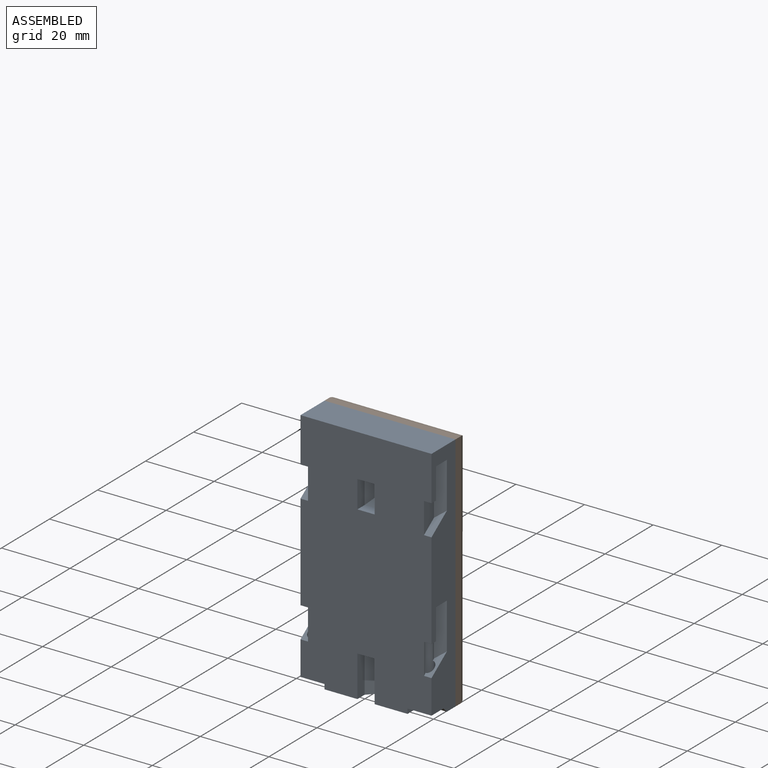
[diagram: assembled view]
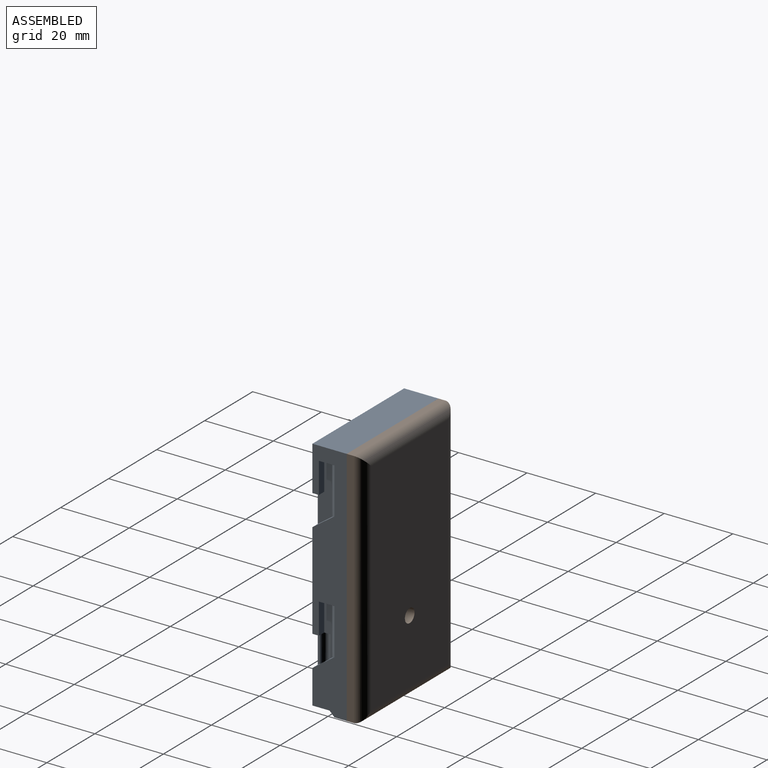
[diagram: assembled view, second angle]
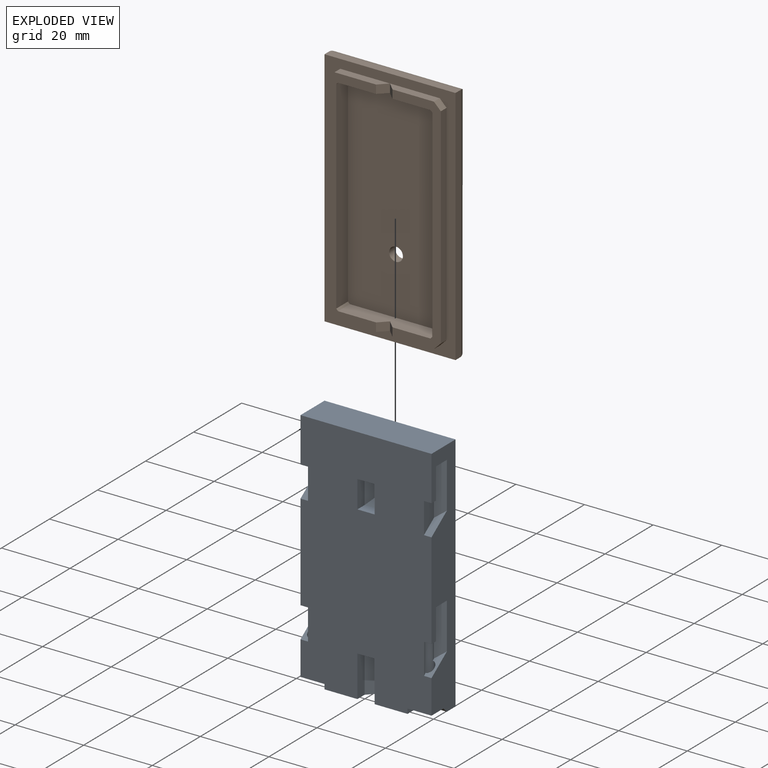
[diagram: exploded view]
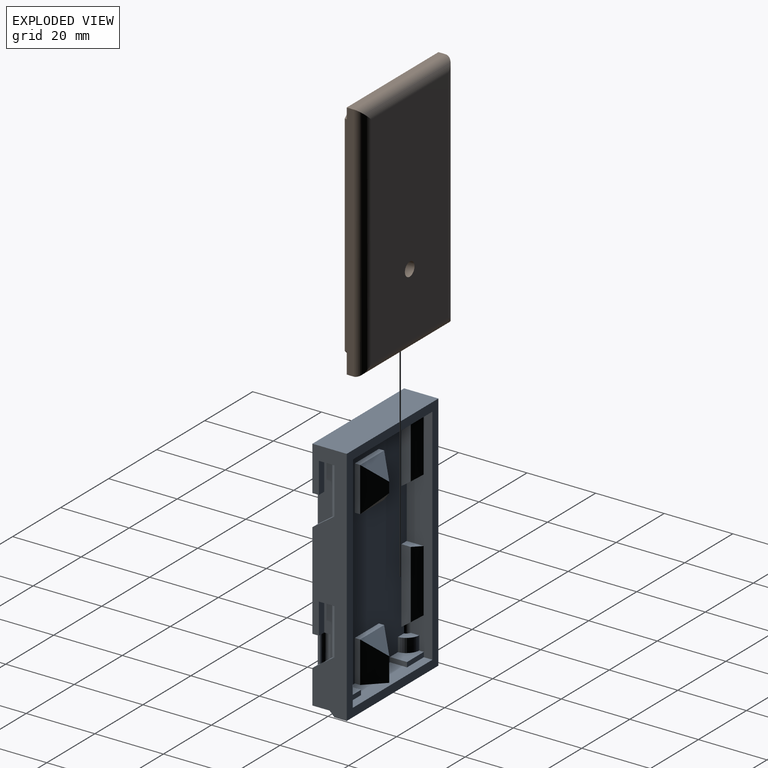
[diagram: exploded view, second angle]
ASSEMBLY  parts=2 mates=3
PART A: 97 faces, bbox 38.2x10x70.4 mm
  f0: plane 65.4x33.2mm, normal (0,1,0), area 1680.3mm2, adj f1,f2,f53,f54,f55,f56,f57,f58
  f1: plane 65.4x7.5mm, normal (1,0,0), area 273.3mm2, adj f0,f2,f5,f53,f54,f80,f82,f83
  f2: plane 7x5mm, normal (0,0,1), area 24.9mm2, adj f0,f1,f80,f81,f91
  f3: plane 9x0.73mm, normal (1,0,0), area 6.4mm2, adj f6,f25,f26,f90
  f4: plane 15.38x2.3mm, normal (-1,0,0), area 24mm2, adj f41,f42,f43,f44,f51,f89
  f5: plane 70.4x38.2mm, normal (0,1,0), area 518mm2, adj f1,f7,f8,f9,f10,f53,f54,f55
  f6: plane 70.4x38.2mm, normal (0,-1,0), area 2490.5mm2, adj f3,f7,f8,f9,f10,f11,f12,f13
  f7: plane 38.2x10mm, normal (0,0,-1), area 271.1mm2, adj f5,f6,f8,f10,f12,f13,f23,f24
  f8: plane 70.4x10mm, normal (-1,0,0), area 529.1mm2, adj f5,f6,f7,f9,f40,f41,f42,f43
  f9: plane 38.2x10mm, normal (0,0,1), area 382mm2, adj f5,f6,f8,f10
  f10: plane 70.4x10mm, normal (1,0,0), area 529.1mm2, adj f5,f6,f7,f9,f25,f26,f27,f28
  f11: plane 5x3mm, normal (0,0,-1), area 15mm2, adj f6,f12,f13,f22
  f12: plane 12x3mm, normal (1,0,0), area 36mm2, adj f6,f7,f11,f23
  f13: plane 12x3mm, normal (-1,0,0), area 36mm2, adj f6,f7,f11,f24
  f14: plane 5x3mm, normal (0,0,-1), area 15mm2, adj f6,f15,f17,f20
  f15: plane 8x3mm, normal (1,0,0), area 24mm2, adj f6,f14,f16,f19
  f16: plane 5x3mm, normal (0,0,1), area 15mm2, adj f6,f15,f17,f21
  f17: plane 8x3mm, normal (-1,0,0), area 24mm2, adj f6,f14,f16,f18
  f18: plane 8x2.5mm, normal (-0.71,-0.71,0), area 19.4mm2, adj f17,f19,f20,f21
  f19: plane 8x2.5mm, normal (0.71,-0.71,0), area 19.4mm2, adj f15,f18,f20,f21
  f20: plane 5x2.5mm, normal (0,-0.71,-0.71), area 8.8mm2, adj f14,f18,f19
  f21: plane 5x2.5mm, normal (0,-0.71,0.71), area 8.8mm2, adj f16,f18,f19
  f22: plane 5x2.5mm, normal (0,-0.71,-0.71), area 8.8mm2, adj f11,f23,f24
  f23: plane 12x2.5mm, normal (0.71,-0.71,0), area 38mm2, adj f7,f12,f22,f24
  f24: plane 12x2.5mm, normal (-0.71,-0.71,0), area 38mm2, adj f7,f13,f22,f23
  f25: plane 3.67x3.67mm, normal (0,0,-1), area 7.6mm2, adj f3,f6,f10,f28,f29,f90
  f26: plane 6.4x4.57mm, normal (0,-0.58,0.81), area 10.2mm2, adj f3,f6,f10,f29,f35,f90
  f27: plane 4.5x2.2mm, normal (0,0,-1), area 7.5mm2, adj f10,f28,f29,f35
  f28: plane 9x2.2mm, normal (0,1,0), area 19.8mm2, adj f10,f25,f27,f29
  f29: plane 15.38x2.3mm, normal (1,0,0), area 24mm2, adj f25,f26,f27,f28,f35,f90
  f30: plane 2.2x1.9mm, normal (0,0,-1), area 4.2mm2, adj f6,f10,f33,f34
  f31: plane 6.4x4.57mm, normal (0,-0.58,0.81), area 14.3mm2, adj f6,f10,f34,f36
  f32: plane 4.5x2.2mm, normal (0,0,-1), area 7.5mm2, adj f10,f33,f34,f36
  f33: plane 9x2.2mm, normal (0,1,0), area 19.8mm2, adj f10,f30,f32,f34
  f34: plane 18x4.2mm, normal (1,0,0), area 52.2mm2, adj f6,f30,f31,f32,f33,f36
  f35: plane 15x2.2mm, normal (0.71,-0.71,0), area 44.2mm2, adj f10,f26,f27,f29
  f36: plane 15x2.2mm, normal (0.71,-0.71,0), area 44.2mm2, adj f10,f31,f32,f34
  f37: plane 6.4x1.4mm, normal (1,0,0), area 8mm2, adj f6,f7,f38,f95
  f38: plane 7x5mm, normal (0,0,-1), area 28.2mm2, adj f6,f10,f37,f90,f95
  f39: plane 6.4x1.4mm, normal (-1,0,0), area 8mm2, adj f6,f7,f40,f96
  f40: plane 7x5mm, normal (0,0,-1), area 28.2mm2, adj f6,f8,f39,f89,f96
  f41: plane 3.67x3.67mm, normal (0,0,-1), area 7.6mm2, adj f4,f6,f8,f42,f45,f89
  f42: plane 9x2.2mm, normal (0,1,0), area 19.8mm2, adj f4,f8,f41,f43
  f43: plane 4.5x2.2mm, normal (0,0,-1), area 7.5mm2, adj f4,f8,f42,f51
  f44: plane 6.4x4.57mm, normal (0,-0.58,0.81), area 10.2mm2, adj f4,f6,f8,f45,f51,f89
  f45: plane 9x0.73mm, normal (-1,0,0), area 6.4mm2, adj f6,f41,f44,f89
  f46: plane 2.2x1.9mm, normal (0,0,-1), area 4.2mm2, adj f6,f8,f47,f50
  f47: plane 9x2.2mm, normal (0,1,0), area 19.8mm2, adj f8,f46,f48,f50
  f48: plane 4.5x2.2mm, normal (0,0,-1), area 7.5mm2, adj f8,f47,f50,f52
  f49: plane 6.4x4.57mm, normal (0,-0.58,0.81), area 14.3mm2, adj f6,f8,f50,f52
  f50: plane 18x4.2mm, normal (-1,0,0), area 52.2mm2, adj f6,f46,f47,f48,f49,f52
  f51: plane 15x2.2mm, normal (-0.71,-0.71,0), area 44.2mm2, adj f4,f8,f43,f44
  f52: plane 15x2.2mm, normal (-0.71,-0.71,0), area 44.2mm2, adj f8,f48,f49,f50
  f53: plane 33.2x7.5mm, normal (0,0,-1), area 232.1mm2, adj f0,f1,f5,f55,f74,f76,f86,f88
  f54: plane 33.2x7.5mm, normal (0,0,1), area 138.6mm2, adj f0,f1,f5,f55,f57,f58,f68,f69
  f55: plane 65.4x7.5mm, normal (-1,0,0), area 273.3mm2, adj f0,f5,f53,f54,f70,f71,f73,f75
  f56: plane 10x1.54mm, normal (0,0,1), area 15.4mm2, adj f0,f57,f58,f67
  f57: plane 12x1.54mm, normal (-1,0,0), area 18.4mm2, adj f0,f54,f56,f68
  f58: plane 12x1.54mm, normal (1,0,0), area 18.4mm2, adj f0,f54,f56,f69
  f59: plane 10x1.54mm, normal (0,0,1), area 15.4mm2, adj f0,f60,f62,f65
  f60: plane 13x1.54mm, normal (-1,0,0), area 20mm2, adj f0,f59,f61,f64
  f61: plane 10x1.54mm, normal (0,0,-1), area 15.4mm2, adj f0,f60,f62,f66
  f62: plane 13x1.54mm, normal (1,0,0), area 20mm2, adj f0,f59,f61,f63
  f63: plane 13x5mm, normal (0.71,0.71,0), area 56.6mm2, adj f62,f64,f65,f66
  f64: plane 13x5mm, normal (-0.71,0.71,0), area 56.6mm2, adj f60,f63,f65,f66
  f65: plane 10x5mm, normal (0,0.71,0.71), area 35.4mm2, adj f59,f63,f64
  f66: plane 10x5mm, normal (0,0.71,-0.71), area 35.4mm2, adj f61,f63,f64
  f67: plane 10x5mm, normal (0,0.71,0.71), area 35.4mm2, adj f56,f68,f69
  f68: plane 12x5mm, normal (-0.71,0.71,0), area 67.2mm2, adj f54,f57,f67,f69
  f69: plane 12x5mm, normal (0.71,0.71,0), area 67.2mm2, adj f54,f58,f67,f68
  f70: plane 4.94x3.53mm, normal (0,0.58,-0.81), area 9.2mm2, adj f0,f55,f72,f75,f90
  f71: plane 4.94x2.2mm, normal (0,0,1), area 8.4mm2, adj f0,f55,f72,f75
  f72: plane 21.79x2.74mm, normal (-1,0,0), area 56.9mm2, adj f0,f70,f71,f75
  f73: plane 4.94x3.53mm, normal (0,0.58,-0.81), area 10.4mm2, adj f0,f55,f74,f76
  f74: plane 20.79x2.74mm, normal (-1,0,0), area 54.2mm2, adj f0,f53,f73,f76
  f75: plane 19.83x2.2mm, normal (-0.71,0.71,0), area 59.3mm2, adj f55,f70,f71,f72
  f76: plane 18.83x2.2mm, normal (-0.71,0.71,0), area 56.1mm2, adj f53,f55,f73,f74
  f77: plane 7x1.4mm, normal (0,1,0), area 9.8mm2, adj f54,f55,f78,f79
  f78: plane 5x1.4mm, normal (-1,0,0), area 7mm2, adj f0,f54,f77,f79
  f79: plane 7x5mm, normal (0,0,1), area 24.9mm2, adj f0,f55,f77,f78,f93
  f80: plane 7x1.4mm, normal (0,1,0), area 9.8mm2, adj f1,f2,f54,f81
  f81: plane 5x1.4mm, normal (1,0,0), area 7mm2, adj f0,f2,f54,f80
  f82: plane 4.94x2.2mm, normal (0,0,1), area 8.4mm2, adj f0,f1,f84,f87
  f83: plane 4.94x3.53mm, normal (0,0.58,-0.81), area 9.2mm2, adj f0,f1,f84,f87,f89
  f84: plane 21.79x2.74mm, normal (1,0,0), area 56.9mm2, adj f0,f82,f83,f87
  f85: plane 4.94x3.53mm, normal (0,0.58,-0.81), area 10.4mm2, adj f0,f1,f86,f88
  f86: plane 20.79x2.74mm, normal (1,0,0), area 54.2mm2, adj f0,f53,f85,f88
  f87: plane 19.83x2.2mm, normal (0.71,0.71,0), area 59.3mm2, adj f1,f82,f83,f84
  f88: plane 18.83x2.2mm, normal (0.71,0.71,0), area 56.1mm2, adj f1,f53,f85,f86
  f89: cylinder r=1.47mm len=18.9mm, axis (0,0,-1), area 135.8mm2, adj f0,f1,f4,f40,f41,f44,f45,f83
  f90: cylinder r=1.47mm len=18.9mm, axis (0,0,-1), area 135.8mm2, adj f0,f3,f25,f26,f29,f38,f55,f70
  f91: cylinder r=3.97mm len=4mm, axis (0,0,-1), area 22.5mm2, adj f0,f1,f2,f92
  f92: plane 3.66x3.66mm, normal (0,0,1), area 9.2mm2, adj f0,f1,f89,f91
  f93: cylinder r=3.97mm len=4mm, axis (0,0,-1), area 22.5mm2, adj f0,f55,f79,f94
  f94: plane 3.66x3.66mm, normal (0,0,1), area 9.2mm2, adj f0,f55,f90,f93
  f95: plane 7x1.4mm, normal (0,-0.71,-0.71), area 13.9mm2, adj f7,f10,f37,f38
  f96: plane 7x1.4mm, normal (0,-0.71,-0.71), area 13.9mm2, adj f7,f8,f39,f40
PART B: 36 faces, bbox 38.2x7.4x70.4 mm
  f0: plane 14.5x2.4mm, normal (0,0,-1), area 31.9mm2, adj f6,f15,f19,f33
  f1: plane 14.5x2.4mm, normal (0,0,1), area 31.9mm2, adj f6,f15,f18,f34
  f2: plane 14.5x2.4mm, normal (0,0,1), area 31.9mm2, adj f3,f6,f17,f35
  f3: plane 65.2x14.1mm, normal (0,-1,0), area 217.3mm2, adj f2,f4,f5,f13,f14,f16,f17,f22
  f4: plane 26.93x4.9mm, normal (0,0,-1), area 126.2mm2, adj f3,f15,f20,f24,f25,f34,f35
  f5: plane 26.93x4.9mm, normal (0,0,1), area 126.2mm2, adj f3,f15,f20,f23,f26,f32,f33
  f6: plane 70.4x38.2mm, normal (0,-1,0), area 545.7mm2, adj f0,f1,f2,f7,f8,f9,f10,f12
  f7: plane 70.4x2mm, normal (1,0,0), area 140.8mm2, adj f6,f8,f10,f27
  f8: plane 38.2x2mm, normal (0,0,1), area 76.4mm2, adj f6,f7,f9,f28
  f9: plane 70.4x2mm, normal (-1,0,0), area 140.8mm2, adj f6,f8,f10,f30
  f10: plane 38.2x2mm, normal (0,0,-1), area 76.4mm2, adj f6,f7,f9,f29
  f11: plane 64.4x32.2mm, normal (0,1,0), area 2061.1mm2, adj f27,f28,f29,f30,f31
  f12: plane 61.2x2.4mm, normal (-1,0,0), area 146.9mm2, adj f6,f15,f18,f19
  f13: plane 14.5x2.4mm, normal (0,0,-1), area 31.9mm2, adj f3,f6,f16,f32
  f14: plane 61.2x2.4mm, normal (1,0,0), area 146.9mm2, adj f3,f6,f16,f17
  f15: plane 65.2x14.1mm, normal (0,-1,0), area 217.3mm2, adj f0,f1,f4,f5,f12,f18,f19,f21
  f16: plane 2.4x2mm, normal (0.71,0,-0.71), area 6.8mm2, adj f3,f6,f13,f14
  f17: plane 2.4x2mm, normal (0.71,0,0.71), area 6.8mm2, adj f2,f3,f6,f14
  f18: plane 2.4x2mm, normal (-0.71,0,0.71), area 6.8mm2, adj f1,f6,f12,f15
  f19: plane 2.4x2mm, normal (-0.71,0,-0.71), area 6.8mm2, adj f0,f6,f12,f15
  f20: plane 60.2x28mm, normal (0,-1,0), area 1672.5mm2, adj f4,f5,f21,f22,f23,f24,f25,f26
  f21: plane 59.13x4.9mm, normal (1,0,0), area 289.7mm2, adj f15,f20,f25,f26
  f22: plane 59.13x4.9mm, normal (-1,0,0), area 289.7mm2, adj f3,f20,f23,f24
  f23: plane 4.9x0.54mm, normal (-0.71,0,0.71), area 3.7mm2, adj f3,f5,f20,f22
  f24: plane 4.9x0.54mm, normal (-0.71,0,-0.71), area 3.7mm2, adj f3,f4,f20,f22
  f25: plane 4.9x0.54mm, normal (0.71,0,-0.71), area 3.7mm2, adj f4,f15,f20,f21
  f26: plane 4.9x0.54mm, normal (0.71,0,0.71), area 3.7mm2, adj f5,f15,f20,f21
  f27: cylinder r=3mm len=70.4mm, axis (0,0,-1), area 321.5mm2, adj f7,f11,f28,f29
  f28: cylinder r=3mm len=38.2mm, axis (1,0,0), area 169.7mm2, adj f8,f11,f27,f30
  f29: cylinder r=3mm len=38.2mm, axis (-1,0,0), area 169.7mm2, adj f10,f11,f27,f30
  f30: cylinder r=3mm len=70.4mm, axis (0,0,1), area 321.5mm2, adj f9,f11,f28,f29
  f31: cylinder r=2mm len=4mm, axis (0,1,0), area 31.4mm2, adj f11,f20
  f32: plane 2.5x2.4mm, normal (-0.71,-0.71,0), area 8.5mm2, adj f3,f5,f13,f33
  f33: plane 2.5x2.4mm, normal (0.71,-0.71,0), area 8.5mm2, adj f0,f5,f15,f32
  f34: plane 2.5x2.4mm, normal (0.71,-0.71,0), area 8.5mm2, adj f1,f4,f15,f35
  f35: plane 2.5x2.4mm, normal (-0.71,-0.71,0), area 8.5mm2, adj f2,f3,f4,f34
PLACE A t=(22.64,-43.33,-12.84)mm
PLACE B t=(22.64,-33.33,-12.84)mm
MATE planar A.f9 <-> B.f8  axis (0,0,1) through (22.64,-33.33,22.36)mm
MATE planar A.f8 <-> B.f9  axis (-1,0,0) through (3.54,-37.81,-13.59)mm
MATE planar A.f5 <-> B.f6  axis (0,1,0) through (22.64,-33.33,-12.84)mm
